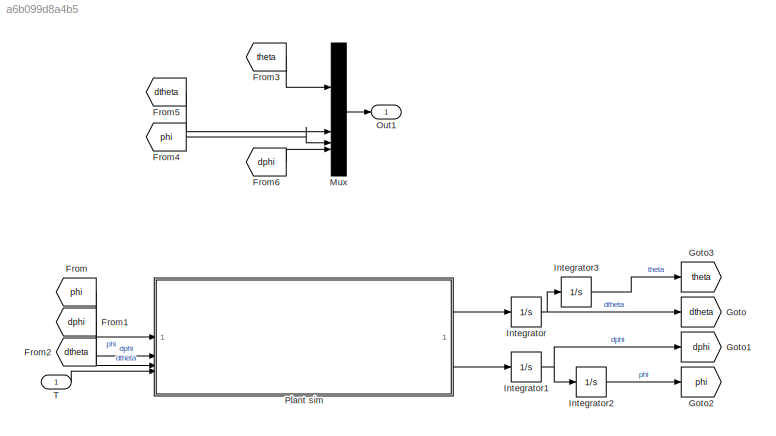
MODEL slx_a6b099d8a4b5
KIND model
CONFIG AbsTol = auto
CONFIG EnableMultiTasking = off
CONFIG FixedStep = auto
CONFIG MaxStep = auto
CONFIG MinStep = auto
CONFIG RelTol = 1e-3
CONFIG SampleTimeConstraint = Unconstrained
CONFIG SolverName = VariableStepAuto
CONFIG StartTime = 0.0
CONFIG StopTime = 10.0
BLOCK [From] From
  GotoTag = phi
BLOCK [From] From1
  GotoTag = dphi
BLOCK [From] From2
  GotoTag = dtheta
BLOCK [From] From3
  GotoTag = theta
BLOCK [From] From4
  GotoTag = phi
BLOCK [From] From5
  GotoTag = dtheta
BLOCK [From] From6
  GotoTag = dphi
BLOCK [Goto] Goto
  GotoTag = dtheta
BLOCK [Goto] Goto1
  GotoTag = dphi
BLOCK [Goto] Goto2
  GotoTag = phi
BLOCK [Goto] Goto3
  GotoTag = theta
BLOCK [Integrator] Integrator
BLOCK [Integrator] Integrator1
BLOCK [Integrator] Integrator2
BLOCK [Integrator] Integrator3
  InitialCondition = pi
BLOCK [Mux] Mux
  DisplayOption = bar
BLOCK [Outport] Out1
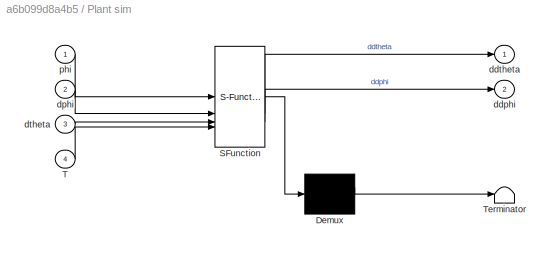
BLOCK [SubSystem] Plant sim
  ErrorFcn = Stateflow.Translate.translate
  PermitHierarchicalResolution = ExplicitOnly
  SFBlockType = MATLAB Function
  TreatAsAtomicUnit = on
BLOCK [Demux] Plant sim/ Demux 
  Outputs = 1
BLOCK [S-Function] Plant sim/ SFunction 
  EnableBusSupport = off
  FunctionName = sf_sfun
  PortCounts = [4 3]
  SFcnIsStateOwnerBlock = off
  SFunctionDeploymentMode = off
  Tag = Stateflow S-Function 2
BLOCK [Terminator] Plant sim/ Terminator 
BLOCK [Inport] Plant sim/T
  Port = 4
BLOCK [Outport] Plant sim/ddphi
  Port = 2
BLOCK [Outport] Plant sim/ddtheta
BLOCK [Inport] Plant sim/dphi
  Port = 2
BLOCK [Inport] Plant sim/dtheta
  Port = 3
BLOCK [Inport] Plant sim/phi
BLOCK [Inport] T
LINE From1:1 -> Plant sim:2
LINE From2:1 -> Plant sim:3
LINE From3:1 -> Mux:1
LINE From4:1 -> Mux:3
LINE From5:1 -> Mux:2
LINE From6:1 -> Mux:4
LINE From:1 -> Plant sim:1
NET Integrator1:1 -> Goto1:1, Integrator2:1
LINE Integrator2:1 -> Goto2:1
LINE Integrator3:1 -> Goto3:1
NET Integrator:1 -> Goto:1, Integrator3:1
LINE Mux:1 -> Out1:1
LINE Plant sim:1 -> Integrator:1
LINE Plant sim:2 -> Integrator1:1
LINE T:1 -> Plant sim:4
note: NET lines group one-source signal fan-out (src -> all destinations, sorted); 1:1 wires keep LINE
CHART Plant sim states=1 transitions=1
  STATE_LABEL 'eML_blk_kernel()'
  STATE_LABEL 'SCRIPT:\nfunction [ddtheta, ddphi] = fcn(phi, dphi, dtheta, T)\n\nR = 0.3700\nl = 0.2698\nr = 0; %reduced into J1_bar\nM = 0; %reduced into J1_bar\ng = 9.81;\nc1 = 1; %friction of base\nc2 = 0; %friction of pivot\n\n% J =  0.1530 % J1_bar J - inertia of the table\nJ =  0.1314 \nIxx = 0\nIyy = 5.5625e-05 %Jy \nIzz = 0.0131%Jz_bar%  I - inertia of the pendulum\n% Izz = 0.0132\nm =     0.1580\nT = T;\n\n\nddphi = (0.5000...<+1795ch>'
CHART  states=0 transitions=0
